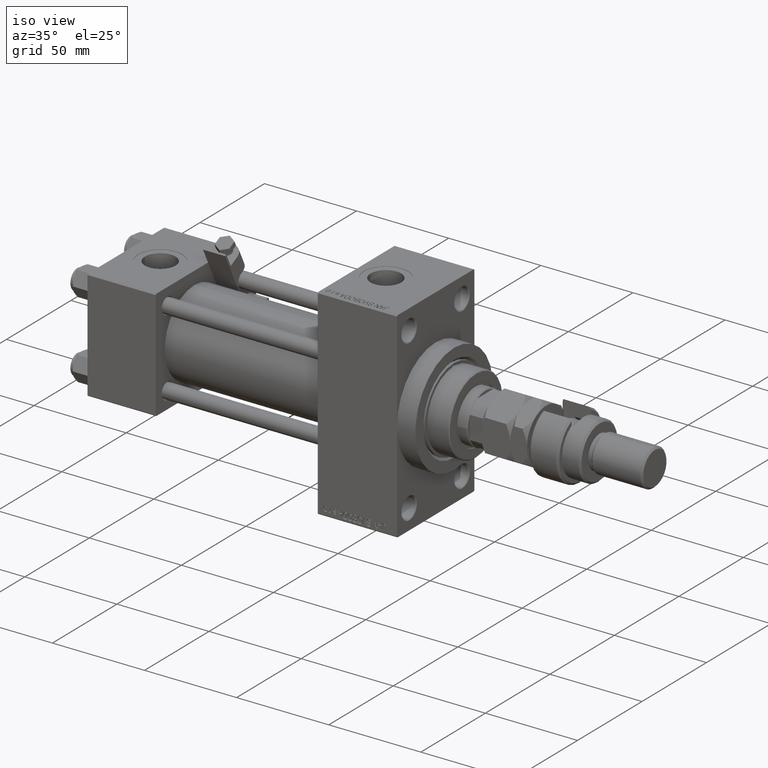
[diagram: clean part render]
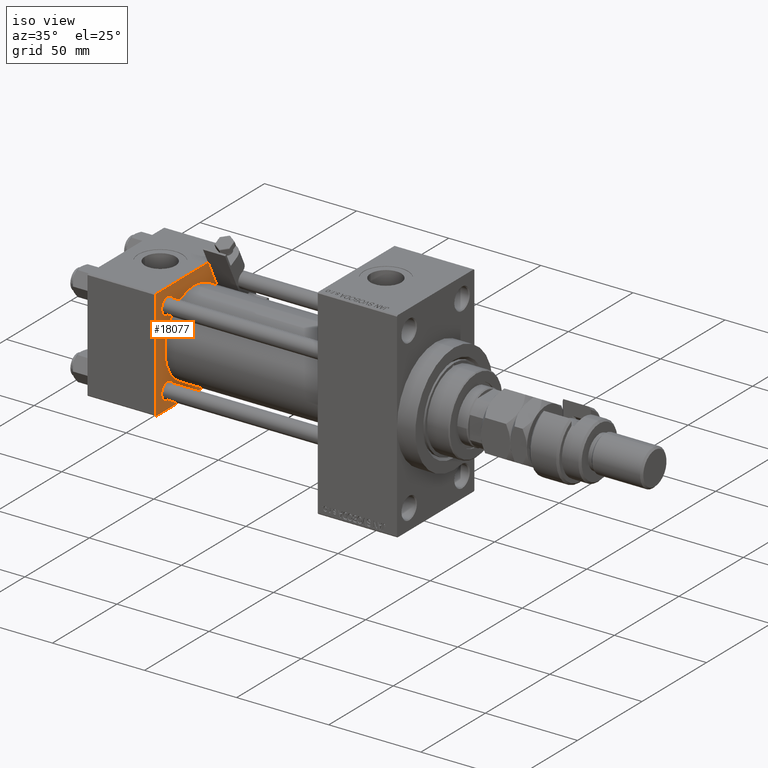
[diagram: same view with one face highlighted and labeled with its STEP entity id]
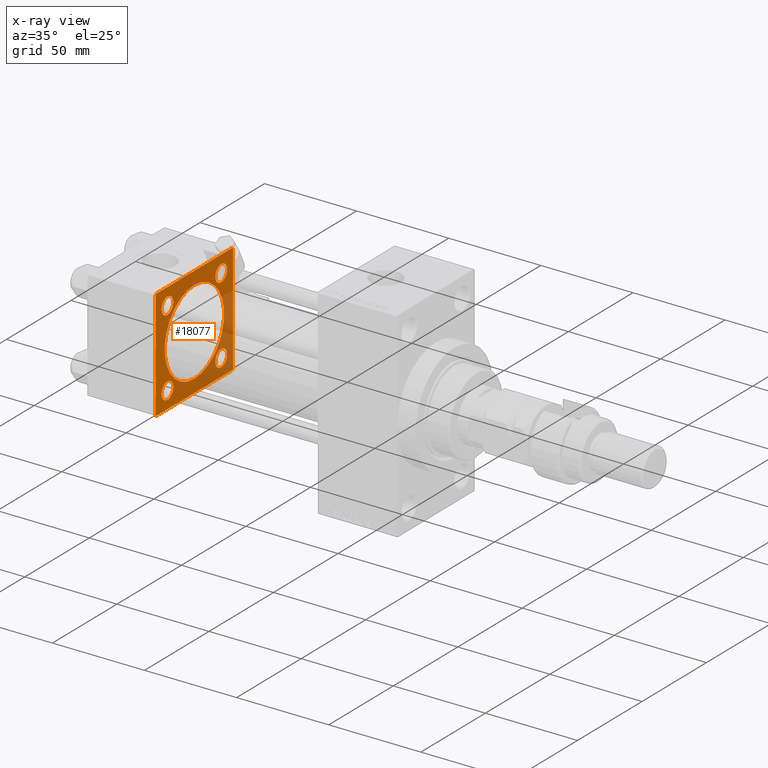
[diagram: x-ray of the same camera — body ghosted, the highlighted face saturated]
A machine part, iso view. The second image highlights one B-rep face of the part: STEP entity #18077.
The next image is the same camera in x-ray: the body ghosted, the highlighted face saturated — about 27% of this face is hidden behind the body in this view.
In plain terms, the highlighted planar face has unit normal (-1, 0, 0).
Its self-contained STEP definition (entity closure, byte-faithful):
#156 = VERTEX_POINT ( 'NONE', #14773 ) ;
#183 = ORIENTED_EDGE ( 'NONE', *, *, #12854, .T. ) ;
#187 = VECTOR ( 'NONE', #30269, 1000.000000000000114 ) ;
#442 = ORIENTED_EDGE ( 'NONE', *, *, #38426, .T. ) ;
#524 = AXIS2_PLACEMENT_3D ( 'NONE', #46719, #9661, #34276 ) ;
#815 = VERTEX_POINT ( 'NONE', #4041 ) ;
#1030 = ORIENTED_EDGE ( 'NONE', *, *, #18863, .T. ) ;
#1074 = ORIENTED_EDGE ( 'NONE', *, *, #9211, .T. ) ;
#1382 = LINE ( 'NONE', #26832, #29210 ) ;
#1507 = DIRECTION ( 'NONE',  ( -1.000000000000000000, 0.000000000000000000, -0.000000000000000000 ) ) ;
#1632 = AXIS2_PLACEMENT_3D ( 'NONE', #31846, #11294, #20210 ) ;
#4016 = EDGE_CURVE ( 'NONE', #24252, #16352, #1382, .T. ) ;
#4041 = CARTESIAN_POINT ( 'NONE',  ( 37.00000000000000000, -20.84999999999999076, 25.35000000000003695 ) ) ;
#4088 = CARTESIAN_POINT ( 'NONE',  ( 37.00000000000000000, -20.84999999999999076, 16.34999999999997300 ) ) ;
#4506 = EDGE_LOOP ( 'NONE', ( #37234, #27446 ) ) ;
#4554 = VERTEX_POINT ( 'NONE', #35810 ) ;
#5041 = VECTOR ( 'NONE', #6080, 999.9999999999998863 ) ;
#5527 = CARTESIAN_POINT ( 'NONE',  ( 37.00000000000000000, 29.99999999999999289, 29.50000000000000000 ) ) ;
#5801 = CARTESIAN_POINT ( 'NONE',  ( 37.00000000000000000, 29.99999999999999289, -29.50000000000000000 ) ) ;
#5927 = ORIENTED_EDGE ( 'NONE', *, *, #28868, .F. ) ;
#6080 = DIRECTION ( 'NONE',  ( -0.000000000000000000, 0.7071067811865574537, 0.7071067811865376918 ) ) ;
#6482 = AXIS2_PLACEMENT_3D ( 'NONE', #52096, #35878, #31559 ) ;
#6587 = CIRCLE ( 'NONE', #524, 4.500000000000031974 ) ;
#6761 = CIRCLE ( 'NONE', #9379, 4.500000000000031974 ) ;
#6864 = LINE ( 'NONE', #27175, #14675 ) ;
#6974 = VECTOR ( 'NONE', #8162, 1000.000000000000000 ) ;
#7199 = EDGE_CURVE ( 'NONE', #24252, #156, #6864, .T. ) ;
#7247 = AXIS2_PLACEMENT_3D ( 'NONE', #12889, #41024, #35709 ) ;
#7717 = VECTOR ( 'NONE', #49040, 1000.000000000000000 ) ;
#7756 = EDGE_LOOP ( 'NONE', ( #36749, #48907 ) ) ;
#7795 = VERTEX_POINT ( 'NONE', #10545 ) ;
#8162 = DIRECTION ( 'NONE',  ( 0.000000000000000000, -1.000000000000000000, -1.156482317317871725E-16 ) ) ;
#9211 = EDGE_CURVE ( 'NONE', #16137, #10355, #51704, .T. ) ;
#9379 = AXIS2_PLACEMENT_3D ( 'NONE', #35048, #1507, #43428 ) ;
#9661 = DIRECTION ( 'NONE',  ( -1.000000000000000000, 0.000000000000000000, -0.000000000000000000 ) ) ;
#9856 = DIRECTION ( 'NONE',  ( 0.000000000000000000, 0.000000000000000000, -1.000000000000000000 ) ) ;
#10355 = VERTEX_POINT ( 'NONE', #41272 ) ;
#10393 = CARTESIAN_POINT ( 'NONE',  ( 37.00000000000000000, 20.84999999999999787, 20.85000000000000142 ) ) ;
#10496 = CARTESIAN_POINT ( 'NONE',  ( 37.00000000000000000, 20.84999999999999787, 16.34999999999996945 ) ) ;
#10545 = CARTESIAN_POINT ( 'NONE',  ( 37.00000000000000000, -20.84999999999999076, -16.34999999999997300 ) ) ;
#10922 = AXIS2_PLACEMENT_3D ( 'NONE', #35214, #34685, #31426 ) ;
#10958 = EDGE_LOOP ( 'NONE', ( #21109, #1074 ) ) ;
#11075 = ORIENTED_EDGE ( 'NONE', *, *, #7199, .F. ) ;
#11294 = DIRECTION ( 'NONE',  ( -1.000000000000000000, 0.000000000000000000, -0.000000000000000000 ) ) ;
#11365 = FACE_BOUND ( 'NONE', #4506, .T. ) ;
#12854 = EDGE_CURVE ( 'NONE', #16352, #13263, #45230, .T. ) ;
#12889 = CARTESIAN_POINT ( 'NONE',  ( 37.00000000000000000, 0.000000000000000000, 0.000000000000000000 ) ) ;
#12959 = ORIENTED_EDGE ( 'NONE', *, *, #4016, .T. ) ;
#13263 = VERTEX_POINT ( 'NONE', #33069 ) ;
#14298 = CIRCLE ( 'NONE', #32323, 4.500000000000031974 ) ;
#14675 = VECTOR ( 'NONE', #9856, 1000.000000000000000 ) ;
#14756 = LINE ( 'NONE', #5801, #5041 ) ;
#14773 = CARTESIAN_POINT ( 'NONE',  ( 37.00000000000000000, 29.99999999999999289, -29.50000000000000000 ) ) ;
#15064 = VERTEX_POINT ( 'NONE', #16120 ) ;
#15560 = CARTESIAN_POINT ( 'NONE',  ( 37.00000000000000000, 20.84999999999999787, 25.35000000000003340 ) ) ;
#15624 = DIRECTION ( 'NONE',  ( 0.000000000000000000, 0.000000000000000000, -1.000000000000000000 ) ) ;
#16120 = CARTESIAN_POINT ( 'NONE',  ( 37.00000000000000000, -30.00000000000000000, 29.49999999999999289 ) ) ;
#16137 = VERTEX_POINT ( 'NONE', #29392 ) ;
#16352 = VERTEX_POINT ( 'NONE', #24189 ) ;
#16959 = FACE_BOUND ( 'NONE', #10958, .T. ) ;
#17555 = CARTESIAN_POINT ( 'NONE',  ( 37.00000000000000000, -29.50000000000001066, -30.00000000000000711 ) ) ;
#17898 = DIRECTION ( 'NONE',  ( 0.000000000000000000, -0.7071067811865474617, 0.7071067811865474617 ) ) ;
#18077 = ADVANCED_FACE ( 'NONE', ( #21019, #16959, #28622, #11365, #33441, #49409 ), #49924, .F. ) ;
#18504 = DIRECTION ( 'NONE',  ( -1.000000000000000000, 0.000000000000000000, -0.000000000000000000 ) ) ;
#18506 = EDGE_CURVE ( 'NONE', #10355, #16137, #14298, .T. ) ;
#18863 = EDGE_CURVE ( 'NONE', #13263, #15064, #43546, .T. ) ;
#18891 = CARTESIAN_POINT ( 'NONE',  ( 37.00000000000000711, -2.602085213965210642E-15, 0.000000000000000000 ) ) ;
#18953 = DIRECTION ( 'NONE',  ( -0.000000000000000000, -0.7071067811865474617, -0.7071067811865474617 ) ) ;
#19080 = CIRCLE ( 'NONE', #39805, 23.00000000000000000 ) ;
#19223 = CARTESIAN_POINT ( 'NONE',  ( 37.00000000000000000, -30.00000000000000000, 29.49999999999999289 ) ) ;
#19666 = LINE ( 'NONE', #32113, #30699 ) ;
#20056 = CARTESIAN_POINT ( 'NONE',  ( 37.00000000000000000, 29.49999999999997868, -30.00000000000000000 ) ) ;
#20210 = DIRECTION ( 'NONE',  ( 0.000000000000000000, 0.000000000000000000, 1.000000000000000000 ) ) ;
#20290 = VECTOR ( 'NONE', #18953, 1000.000000000000114 ) ;
#20623 = CARTESIAN_POINT ( 'NONE',  ( 37.00000000000000000, 29.99999999999999289, 30.00000000000000000 ) ) ;
#20694 = EDGE_LOOP ( 'NONE', ( #5927, #22452, #11075, #12959, #183, #1030, #52978, #442 ) ) ;
#21019 = FACE_BOUND ( 'NONE', #39950, .T. ) ;
#21109 = ORIENTED_EDGE ( 'NONE', *, *, #18506, .T. ) ;
#21441 = EDGE_CURVE ( 'NONE', #15064, #4554, #19666, .T. ) ;
#22005 = CARTESIAN_POINT ( 'NONE',  ( 37.00000000000000711, -2.602085213965210642E-15, 23.00000000000000000 ) ) ;
#22444 = CARTESIAN_POINT ( 'NONE',  ( 37.00000000000000000, 20.84999999999999787, 20.85000000000000142 ) ) ;
#22452 = ORIENTED_EDGE ( 'NONE', *, *, #30671, .T. ) ;
#22580 = DIRECTION ( 'NONE',  ( 0.000000000000000000, 0.000000000000000000, 1.000000000000000000 ) ) ;
#22852 = EDGE_CURVE ( 'NONE', #44306, #26080, #52377, .T. ) ;
#23045 = EDGE_CURVE ( 'NONE', #50678, #815, #6587, .T. ) ;
#23214 = DIRECTION ( 'NONE',  ( 1.000000000000000000, -0.000000000000000000, 0.000000000000000000 ) ) ;
#23636 = EDGE_CURVE ( 'NONE', #45469, #38340, #33361, .T. ) ;
#24189 = CARTESIAN_POINT ( 'NONE',  ( 37.00000000000000000, 29.49999999999999289, 30.00000000000000000 ) ) ;
#24252 = VERTEX_POINT ( 'NONE', #5527 ) ;
#25241 = LINE ( 'NONE', #41729, #7717 ) ;
#26080 = VERTEX_POINT ( 'NONE', #15560 ) ;
#26730 = CIRCLE ( 'NONE', #37914, 4.500000000000031974 ) ;
#26832 = CARTESIAN_POINT ( 'NONE',  ( 37.00000000000000000, 29.49999999999999289, 30.00000000000000000 ) ) ;
#27175 = CARTESIAN_POINT ( 'NONE',  ( 37.00000000000000000, 29.99999999999999289, 30.00000000000000000 ) ) ;
#27446 = ORIENTED_EDGE ( 'NONE', *, *, #28616, .T. ) ;
#27543 = DIRECTION ( 'NONE',  ( 0.000000000000000000, 0.000000000000000000, 1.000000000000000000 ) ) ;
#27798 = ORIENTED_EDGE ( 'NONE', *, *, #42491, .T. ) ;
#28616 = EDGE_CURVE ( 'NONE', #26080, #44306, #26730, .T. ) ;
#28622 = FACE_BOUND ( 'NONE', #39108, .T. ) ;
#28868 = EDGE_CURVE ( 'NONE', #29836, #32855, #25241, .T. ) ;
#29210 = VECTOR ( 'NONE', #17898, 1000.000000000000114 ) ;
#29212 = EDGE_CURVE ( 'NONE', #44253, #7795, #52609, .T. ) ;
#29392 = CARTESIAN_POINT ( 'NONE',  ( 37.00000000000000000, 20.84999999999999787, -16.34999999999996945 ) ) ;
#29487 = LINE ( 'NONE', #17555, #187 ) ;
#29818 = CIRCLE ( 'NONE', #6482, 4.500000000000031974 ) ;
#29836 = VERTEX_POINT ( 'NONE', #20056 ) ;
#29938 = AXIS2_PLACEMENT_3D ( 'NONE', #22444, #39197, #45513 ) ;
#30269 = DIRECTION ( 'NONE',  ( 0.000000000000000000, 0.7071067811865474617, -0.7071067811865474617 ) ) ;
#30671 = EDGE_CURVE ( 'NONE', #29836, #156, #14756, .T. ) ;
#30699 = VECTOR ( 'NONE', #15624, 1000.000000000000000 ) ;
#30718 = ORIENTED_EDGE ( 'NONE', *, *, #53224, .T. ) ;
#30822 = DIRECTION ( 'NONE',  ( 0.000000000000000000, 0.000000000000000000, 1.000000000000000000 ) ) ;
#31426 = DIRECTION ( 'NONE',  ( 0.000000000000000000, 0.000000000000000000, 1.000000000000000000 ) ) ;
#31559 = DIRECTION ( 'NONE',  ( 0.000000000000000000, 0.000000000000000000, 1.000000000000000000 ) ) ;
#31846 = CARTESIAN_POINT ( 'NONE',  ( 37.00000000000000000, 20.84999999999999787, -20.85000000000000142 ) ) ;
#32113 = CARTESIAN_POINT ( 'NONE',  ( 37.00000000000000000, -30.00000000000000000, 29.99999999999999289 ) ) ;
#32323 = AXIS2_PLACEMENT_3D ( 'NONE', #34173, #46077, #50130 ) ;
#32855 = VERTEX_POINT ( 'NONE', #34932 ) ;
#33069 = CARTESIAN_POINT ( 'NONE',  ( 37.00000000000000000, -29.49999999999998579, 29.99999999999999289 ) ) ;
#33361 = CIRCLE ( 'NONE', #10922, 23.00000000000000000 ) ;
#33441 = FACE_BOUND ( 'NONE', #7756, .T. ) ;
#33927 = CARTESIAN_POINT ( 'NONE',  ( 37.00000000000000711, 2.146024240737016609E-16, -23.00000000000000000 ) ) ;
#34173 = CARTESIAN_POINT ( 'NONE',  ( 37.00000000000000000, 20.84999999999999787, -20.85000000000000142 ) ) ;
#34276 = DIRECTION ( 'NONE',  ( 0.000000000000000000, 0.000000000000000000, 1.000000000000000000 ) ) ;
#34685 = DIRECTION ( 'NONE',  ( 1.000000000000000000, -0.000000000000000000, 0.000000000000000000 ) ) ;
#34932 = CARTESIAN_POINT ( 'NONE',  ( 37.00000000000000000, -29.50000000000000000, -30.00000000000000711 ) ) ;
#35048 = CARTESIAN_POINT ( 'NONE',  ( 37.00000000000000000, -20.84999999999999076, -20.85000000000000497 ) ) ;
#35146 = CARTESIAN_POINT ( 'NONE',  ( 37.00000000000000000, -20.84999999999999076, -20.85000000000000497 ) ) ;
#35214 = CARTESIAN_POINT ( 'NONE',  ( 37.00000000000000711, -2.602085213965210642E-15, 0.000000000000000000 ) ) ;
#35709 = DIRECTION ( 'NONE',  ( -0.000000000000000000, 0.000000000000000000, 1.000000000000000000 ) ) ;
#35781 = EDGE_CURVE ( 'NONE', #38340, #45469, #19080, .T. ) ;
#35810 = CARTESIAN_POINT ( 'NONE',  ( 37.00000000000000000, -30.00000000000000000, -29.50000000000001776 ) ) ;
#35878 = DIRECTION ( 'NONE',  ( -1.000000000000000000, 0.000000000000000000, -0.000000000000000000 ) ) ;
#36749 = ORIENTED_EDGE ( 'NONE', *, *, #35781, .F. ) ;
#37066 = AXIS2_PLACEMENT_3D ( 'NONE', #35146, #48106, #30822 ) ;
#37234 = ORIENTED_EDGE ( 'NONE', *, *, #22852, .T. ) ;
#37907 = ORIENTED_EDGE ( 'NONE', *, *, #23045, .T. ) ;
#37914 = AXIS2_PLACEMENT_3D ( 'NONE', #10393, #18504, #22580 ) ;
#38340 = VERTEX_POINT ( 'NONE', #22005 ) ;
#38426 = EDGE_CURVE ( 'NONE', #4554, #32855, #29487, .T. ) ;
#39108 = EDGE_LOOP ( 'NONE', ( #37907, #27798 ) ) ;
#39197 = DIRECTION ( 'NONE',  ( -1.000000000000000000, 0.000000000000000000, -0.000000000000000000 ) ) ;
#39805 = AXIS2_PLACEMENT_3D ( 'NONE', #18891, #23214, #27543 ) ;
#39950 = EDGE_LOOP ( 'NONE', ( #41621, #30718 ) ) ;
#41024 = DIRECTION ( 'NONE',  ( -1.000000000000000000, 0.000000000000000000, -0.000000000000000000 ) ) ;
#41272 = CARTESIAN_POINT ( 'NONE',  ( 37.00000000000000000, 20.84999999999999787, -25.35000000000003340 ) ) ;
#41621 = ORIENTED_EDGE ( 'NONE', *, *, #29212, .T. ) ;
#41729 = CARTESIAN_POINT ( 'NONE',  ( 37.00000000000000000, 29.99999999999999289, -30.00000000000000000 ) ) ;
#42491 = EDGE_CURVE ( 'NONE', #815, #50678, #29818, .T. ) ;
#42672 = CARTESIAN_POINT ( 'NONE',  ( 37.00000000000000000, -20.84999999999999076, -25.35000000000003695 ) ) ;
#43428 = DIRECTION ( 'NONE',  ( 0.000000000000000000, 0.000000000000000000, 1.000000000000000000 ) ) ;
#43546 = LINE ( 'NONE', #19223, #20290 ) ;
#44253 = VERTEX_POINT ( 'NONE', #42672 ) ;
#44306 = VERTEX_POINT ( 'NONE', #10496 ) ;
#45230 = LINE ( 'NONE', #20623, #6974 ) ;
#45469 = VERTEX_POINT ( 'NONE', #33927 ) ;
#45513 = DIRECTION ( 'NONE',  ( 0.000000000000000000, 0.000000000000000000, 1.000000000000000000 ) ) ;
#46077 = DIRECTION ( 'NONE',  ( -1.000000000000000000, 0.000000000000000000, -0.000000000000000000 ) ) ;
#46719 = CARTESIAN_POINT ( 'NONE',  ( 37.00000000000000000, -20.84999999999999076, 20.85000000000000497 ) ) ;
#48106 = DIRECTION ( 'NONE',  ( -1.000000000000000000, 0.000000000000000000, -0.000000000000000000 ) ) ;
#48907 = ORIENTED_EDGE ( 'NONE', *, *, #23636, .F. ) ;
#49040 = DIRECTION ( 'NONE',  ( 0.000000000000000000, -1.000000000000000000, -1.156482317317871725E-16 ) ) ;
#49409 = FACE_OUTER_BOUND ( 'NONE', #20694, .T. ) ;
#49924 = PLANE ( 'NONE',  #7247 ) ;
#50130 = DIRECTION ( 'NONE',  ( 0.000000000000000000, 0.000000000000000000, 1.000000000000000000 ) ) ;
#50678 = VERTEX_POINT ( 'NONE', #4088 ) ;
#51704 = CIRCLE ( 'NONE', #1632, 4.500000000000031974 ) ;
#52096 = CARTESIAN_POINT ( 'NONE',  ( 37.00000000000000000, -20.84999999999999076, 20.85000000000000497 ) ) ;
#52377 = CIRCLE ( 'NONE', #29938, 4.500000000000031974 ) ;
#52609 = CIRCLE ( 'NONE', #37066, 4.500000000000031974 ) ;
#52978 = ORIENTED_EDGE ( 'NONE', *, *, #21441, .T. ) ;
#53224 = EDGE_CURVE ( 'NONE', #7795, #44253, #6761, .T. ) ;